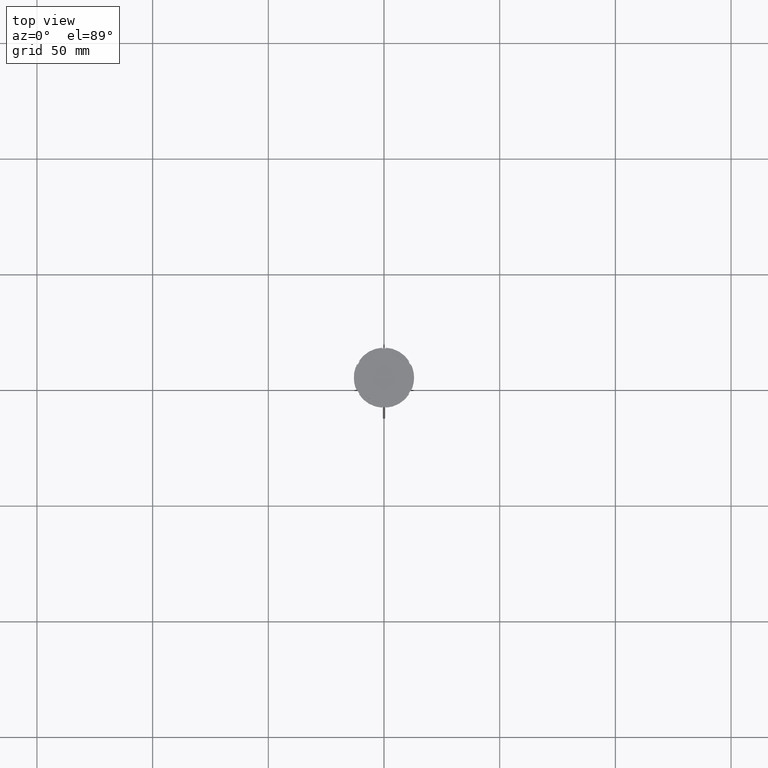
[diagram: clean part render]
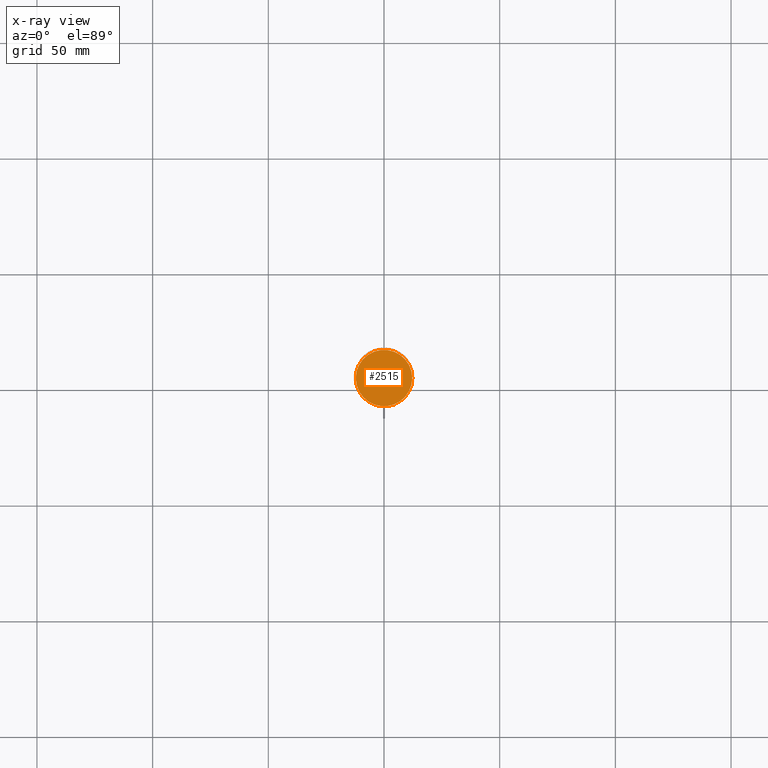
[diagram: x-ray — body ghosted, one internal face saturated and labeled with its STEP entity id]
A machine part, top view, then the same camera in x-ray: the body is ghosted and one INTERNAL B-rep face — a face not visible from any outside direction — is saturated and labeled: STEP entity #2515.
In plain terms, the highlighted planar face has unit normal (0, 0, -1).
Its self-contained STEP definition (entity closure, byte-faithful):
#191 = CARTESIAN_POINT ( 'NONE',  ( 0.000000000000000000, 0.000000000000000000, -12.00000000000000000 ) ) ;
#192 = AXIS2_PLACEMENT_3D ( 'NONE', #191, #612, #1446 ) ;
#198 = FACE_OUTER_BOUND ( 'NONE', #358, .T. ) ;
#302 = CARTESIAN_POINT ( 'NONE',  ( 12.20000000000000639, 1.512438796946981880E-15, -12.00000000000000000 ) ) ;
#358 = EDGE_LOOP ( 'NONE', ( #1866, #2406 ) ) ;
#419 = CARTESIAN_POINT ( 'NONE',  ( -12.20000000000000639, 0.000000000000000000, -12.00000000000000000 ) ) ;
#511 = CARTESIAN_POINT ( 'NONE',  ( 0.000000000000000000, 0.000000000000000000, -12.00000000000000000 ) ) ;
#612 = DIRECTION ( 'NONE',  ( -0.000000000000000000, -0.000000000000000000, 1.000000000000000000 ) ) ;
#794 = CIRCLE ( 'NONE', #1542, 12.20000000000000639 ) ;
#867 = PLANE ( 'NONE',  #1239 ) ;
#1131 = CIRCLE ( 'NONE', #192, 12.20000000000000639 ) ;
#1239 = AXIS2_PLACEMENT_3D ( 'NONE', #1308, #2153, #1720 ) ;
#1308 = CARTESIAN_POINT ( 'NONE',  ( 0.000000000000000000, 0.000000000000000000, -12.00000000000000000 ) ) ;
#1352 = DIRECTION ( 'NONE',  ( -0.000000000000000000, -0.000000000000000000, 1.000000000000000000 ) ) ;
#1446 = DIRECTION ( 'NONE',  ( -1.000000000000000000, 0.000000000000000000, 0.000000000000000000 ) ) ;
#1538 = EDGE_CURVE ( 'NONE', #1592, #1816, #1131, .T. ) ;
#1542 = AXIS2_PLACEMENT_3D ( 'NONE', #511, #1352, #1805 ) ;
#1592 = VERTEX_POINT ( 'NONE', #419 ) ;
#1720 = DIRECTION ( 'NONE',  ( -1.000000000000000000, 0.000000000000000000, -0.000000000000000000 ) ) ;
#1805 = DIRECTION ( 'NONE',  ( -1.000000000000000000, 0.000000000000000000, 0.000000000000000000 ) ) ;
#1816 = VERTEX_POINT ( 'NONE', #302 ) ;
#1866 = ORIENTED_EDGE ( 'NONE', *, *, #1538, .T. ) ;
#2153 = DIRECTION ( 'NONE',  ( 0.000000000000000000, 0.000000000000000000, -1.000000000000000000 ) ) ;
#2253 = EDGE_CURVE ( 'NONE', #1816, #1592, #794, .T. ) ;
#2406 = ORIENTED_EDGE ( 'NONE', *, *, #2253, .T. ) ;
#2515 = ADVANCED_FACE ( 'NONE', ( #198 ), #867, .F. ) ;